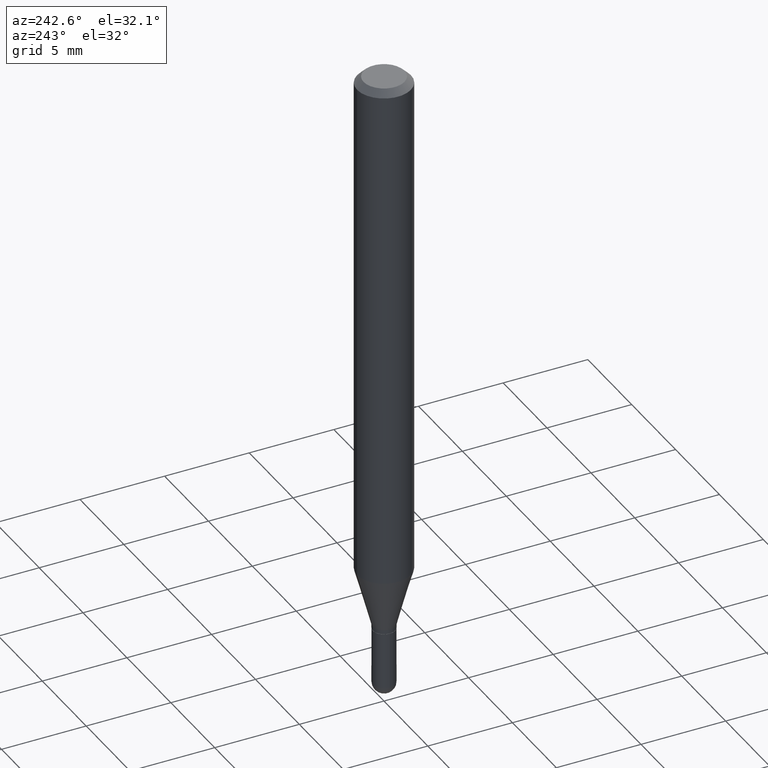
[diagram: clean part render]
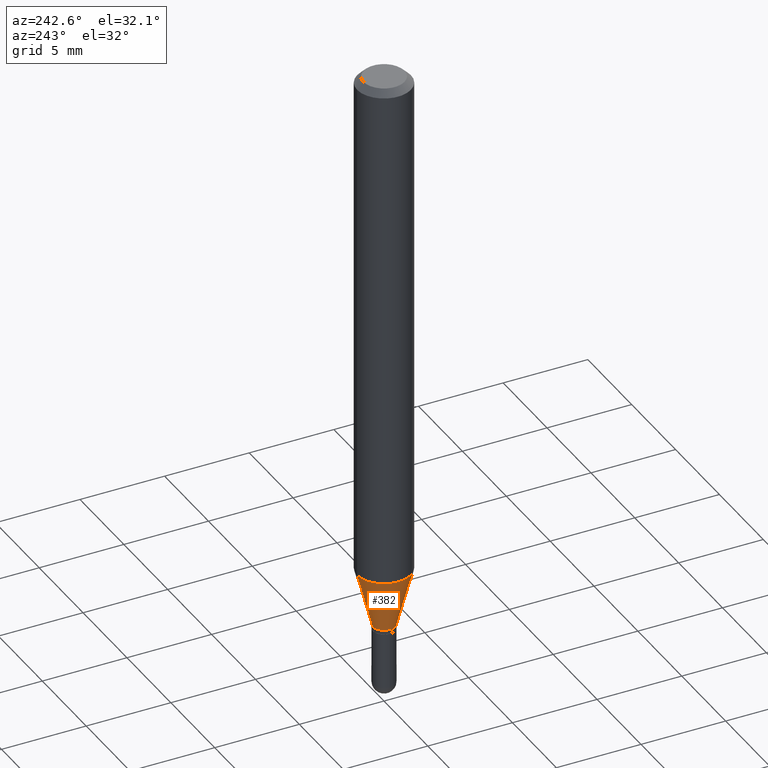
[diagram: same view with one face highlighted and labeled with its STEP entity id]
A machine part, auxiliary view. The second image highlights one B-rep face of the part: STEP entity #382.
In plain terms, the highlighted conical surface has half-angle 15 deg.
Its self-contained STEP definition (entity closure, byte-faithful):
#6 = AXIS2_PLACEMENT_3D ( 'NONE', #187, #18, #347 ) ;
#18 = DIRECTION ( 'NONE',  ( -2.445455361750813344E-29, 3.491500592038306462E-15, 1.000000000000000000 ) ) ;
#30 = CARTESIAN_POINT ( 'NONE',  ( -1.815570296198097471E-16, -0.02600000000000458195, -1.334000000000000075 ) ) ;
#38 = VERTEX_POINT ( 'NONE', #330 ) ;
#55 = DIRECTION ( 'NONE',  ( 1.839019923739601893E-15, 0.2588190451025252359, 0.9659258262890670910 ) ) ;
#56 = AXIS2_PLACEMENT_3D ( 'NONE', #486, #299, #444 ) ;
#61 = EDGE_CURVE ( 'NONE', #38, #371, #507, .T. ) ;
#103 = CARTESIAN_POINT ( 'NONE',  ( 2.929117879069690372E-29, -4.182050087227853804E-15, -1.197780145523736239 ) ) ;
#143 = EDGE_CURVE ( 'NONE', #152, #38, #206, .T. ) ;
#149 = CARTESIAN_POINT ( 'NONE',  ( -4.364351673553624816E-16, -0.06250000000000420497, -1.197780145523736017 ) ) ;
#152 = VERTEX_POINT ( 'NONE', #179 ) ;
#176 = FACE_OUTER_BOUND ( 'NONE', #293, .T. ) ;
#179 = CARTESIAN_POINT ( 'NONE',  ( 3.144151605738750813E-16, 0.02599999999999526648, -1.334000000000000075 ) ) ;
#181 = AXIS2_PLACEMENT_3D ( 'NONE', #103, #262, #346 ) ;
#187 = CARTESIAN_POINT ( 'NONE',  ( 3.262237452575584502E-29, -4.657661789779100517E-15, -1.334000000000000075 ) ) ;
#204 = VERTEX_POINT ( 'NONE', #318 ) ;
#206 = LINE ( 'NONE', #296, #353 ) ;
#229 = CONICAL_SURFACE ( 'NONE', #56, 0.02599999999999992248, 0.2617993877991505181 ) ;
#244 = LINE ( 'NONE', #30, #354 ) ;
#251 = ORIENTED_EDGE ( 'NONE', *, *, #143, .F. ) ;
#262 = DIRECTION ( 'NONE',  ( -2.445455361750813344E-29, 3.491500592038306462E-15, 1.000000000000000000 ) ) ;
#277 = EDGE_CURVE ( 'NONE', #152, #204, #327, .T. ) ;
#293 = EDGE_LOOP ( 'NONE', ( #251, #401, #320, #470 ) ) ;
#296 = CARTESIAN_POINT ( 'NONE',  ( 1.847411112976581120E-16, 0.02599999999999526648, -1.334000000000000075 ) ) ;
#299 = DIRECTION ( 'NONE',  ( -2.445455361750813344E-29, 3.491500592038306462E-15, 1.000000000000000000 ) ) ;
#318 = CARTESIAN_POINT ( 'NONE',  ( -1.815570296198097471E-16, -0.02600000000000458195, -1.334000000000000075 ) ) ;
#320 = ORIENTED_EDGE ( 'NONE', *, *, #395, .T. ) ;
#327 = CIRCLE ( 'NONE', #6, 0.02599999999999992248 ) ;
#330 = CARTESIAN_POINT ( 'NONE',  ( 4.440892098500917054E-16, 0.06249999999999580197, -1.197780145523736683 ) ) ;
#346 = DIRECTION ( 'NONE',  ( -6.982962677686265922E-15, -1.000000000000000000, 4.370956789862821150E-15 ) ) ;
#347 = DIRECTION ( 'NONE',  ( -6.982962677686266711E-15, -1.000000000000000000, 0.000000000000000000 ) ) ;
#353 = VECTOR ( 'NONE', #55, 39.37007874015748854 ) ;
#354 = VECTOR ( 'NONE', #504, 39.37007874015748854 ) ;
#371 = VERTEX_POINT ( 'NONE', #149 ) ;
#382 = ADVANCED_FACE ( 'NONE', ( #176 ), #229, .T. ) ;
#395 = EDGE_CURVE ( 'NONE', #204, #371, #244, .T. ) ;
#401 = ORIENTED_EDGE ( 'NONE', *, *, #277, .T. ) ;
#444 = DIRECTION ( 'NONE',  ( -6.982962677686266711E-15, -1.000000000000000000, 0.000000000000000000 ) ) ;
#470 = ORIENTED_EDGE ( 'NONE', *, *, #61, .F. ) ;
#486 = CARTESIAN_POINT ( 'NONE',  ( 3.262237452575584502E-29, -4.657661789779100517E-15, -1.334000000000000075 ) ) ;
#504 = DIRECTION ( 'NONE',  ( -1.807323732225331717E-15, -0.2588190451025184080, 0.9659258262890689783 ) ) ;
#507 = CIRCLE ( 'NONE', #181, 0.06250000000000000000 ) ;